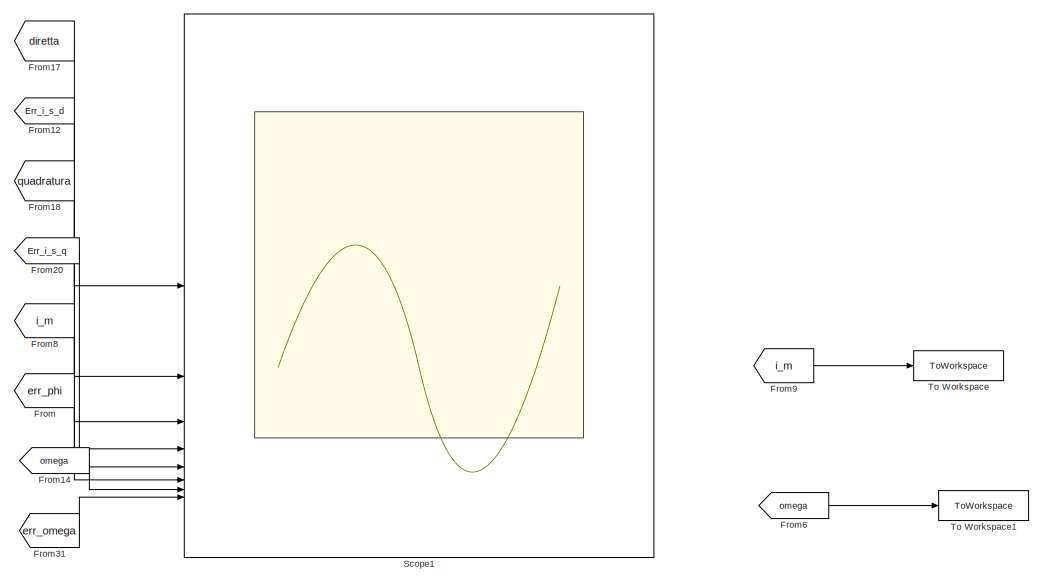
[diagram: root canvas - part 1/5, top right region]
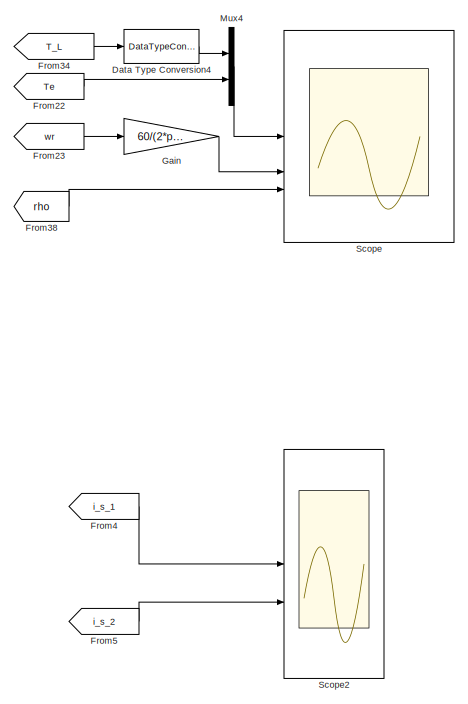
[diagram: root canvas - part 2/5, top center region]
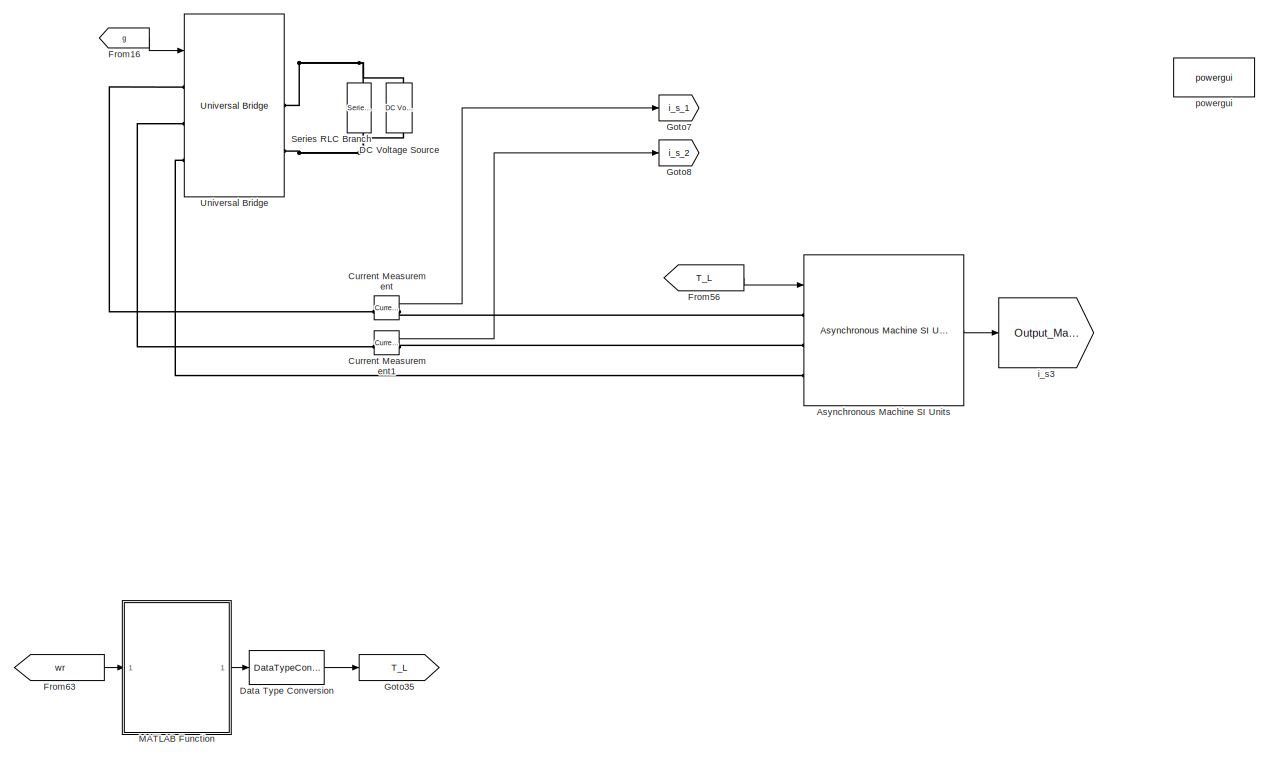
[diagram: root canvas - part 3/5, top left region]
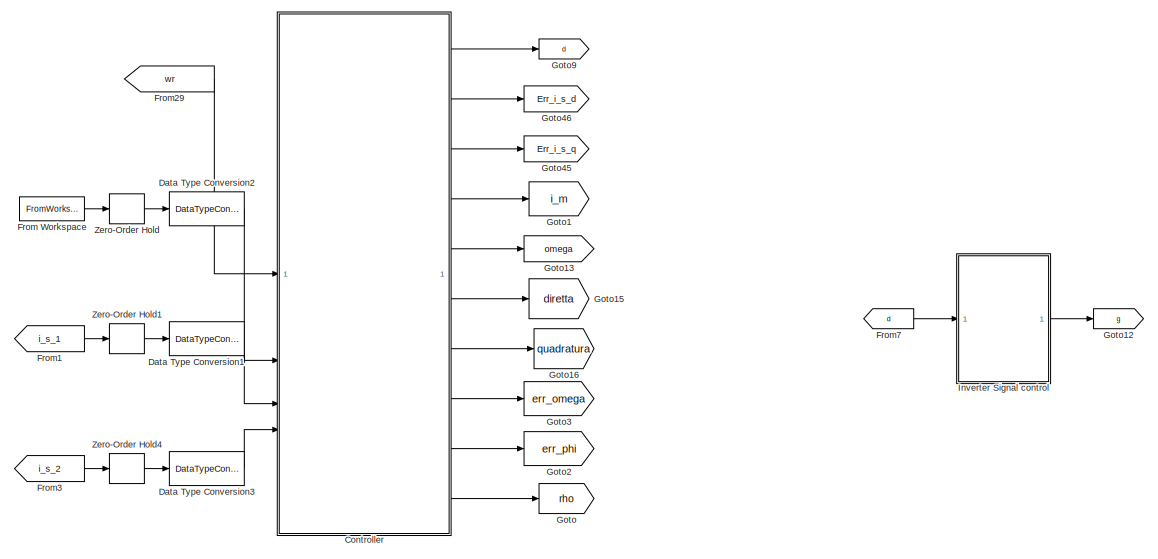
[diagram: root canvas - part 4/5, bottom right region]
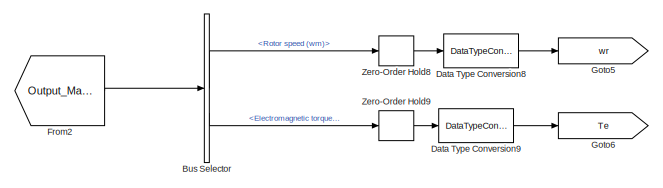
[diagram: root canvas - part 5/5, bottom center region]
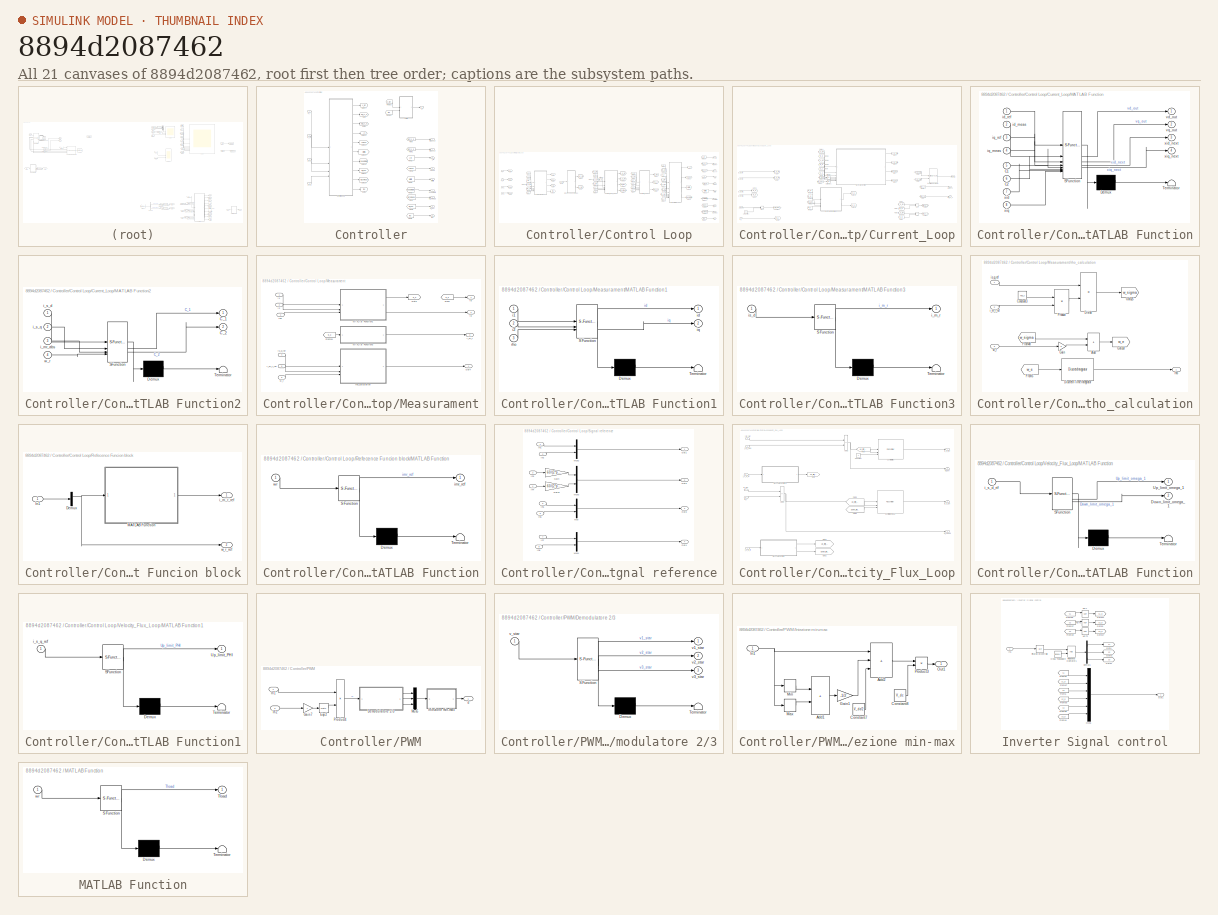
[diagram: thumbnail index - all 21 canvases of the model, root first then tree order]
MODEL slx_8894d2087462
KIND model
CONFIG AbsTol = auto
CONFIG EnableMultiTasking = off
CONFIG FixedStep = auto
CONFIG InitFcn = Motor_data_IM_R;
CONFIG MaxStep = 1e-5
CONFIG MinStep = auto
CONFIG RelTol = 1e-4
CONFIG SampleTimeConstraint = Unconstrained
CONFIG SolverName = ode23tb
CONFIG StartTime = 0.0
CONFIG StopTime = 10
BLOCK [Reference] Asynchronous Machine SI Units  REF=spsAsynchronousMachineSIUnitsLib/Asynchronous Machine
SI Units
  LibrarySourceBlock = sps_lib/Electrical Machines/Asynchronous Machine\nSI Units
  SourceBlock = spsAsynchronousMachineSIUnitsLib/Asynchronous Machine\nSI Units
  SourceType = Asynchronous Machine
BLOCK [BusSelector] Bus Selector
  OutputSignals = Mechanical.Rotor speed (wm),Mechanical.Electromagnetic torque Te (N*m)
BLOCK [SubSystem] Controller
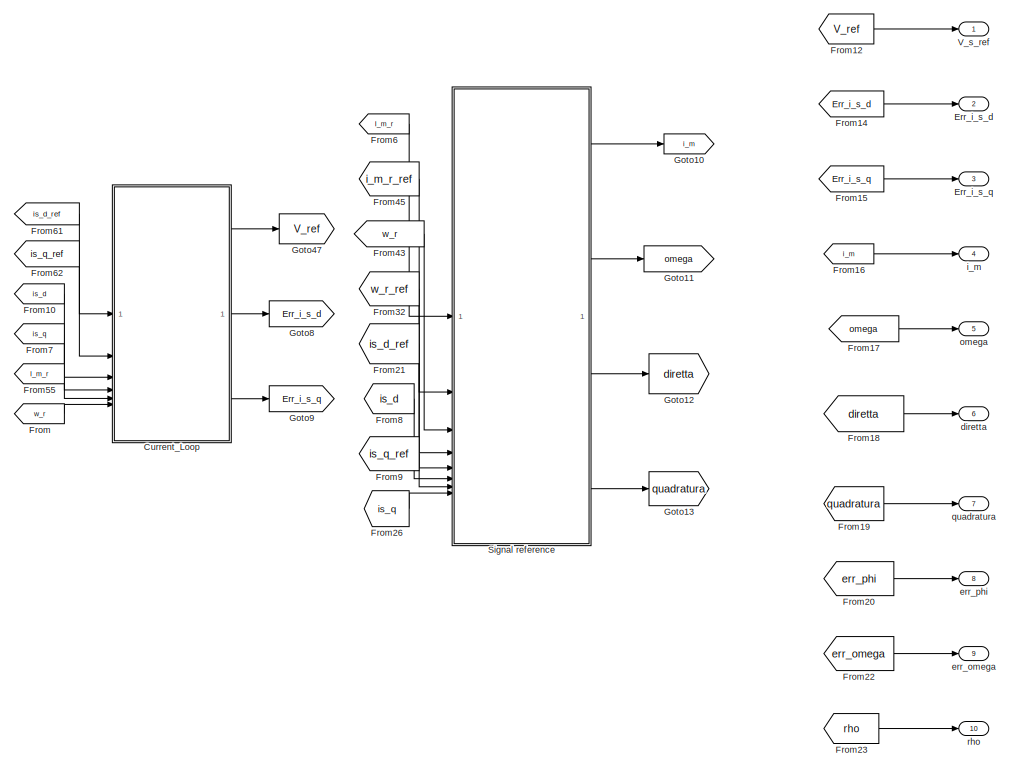
[diagram: Controller/Control Loop - part 1/2, right side, full height]
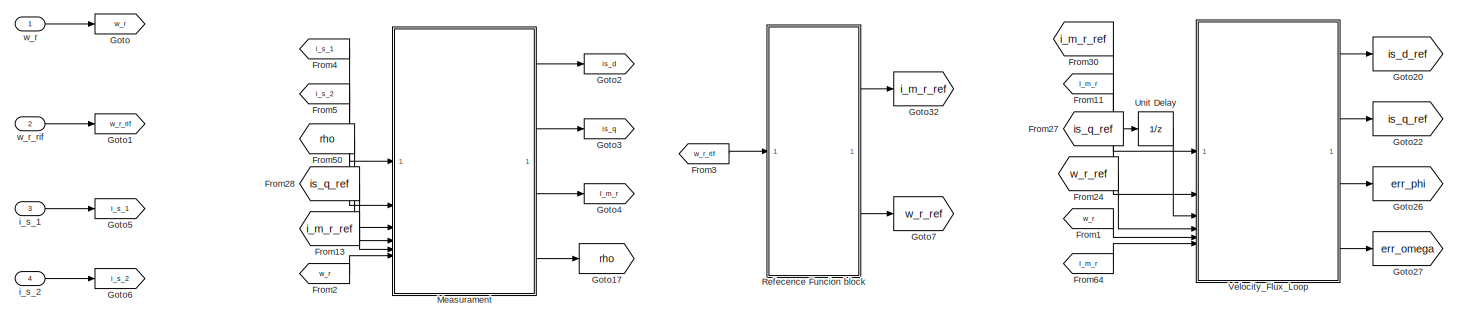
[diagram: Controller/Control Loop - part 2/2, middle left region]
BLOCK [SubSystem] Controller/Control Loop
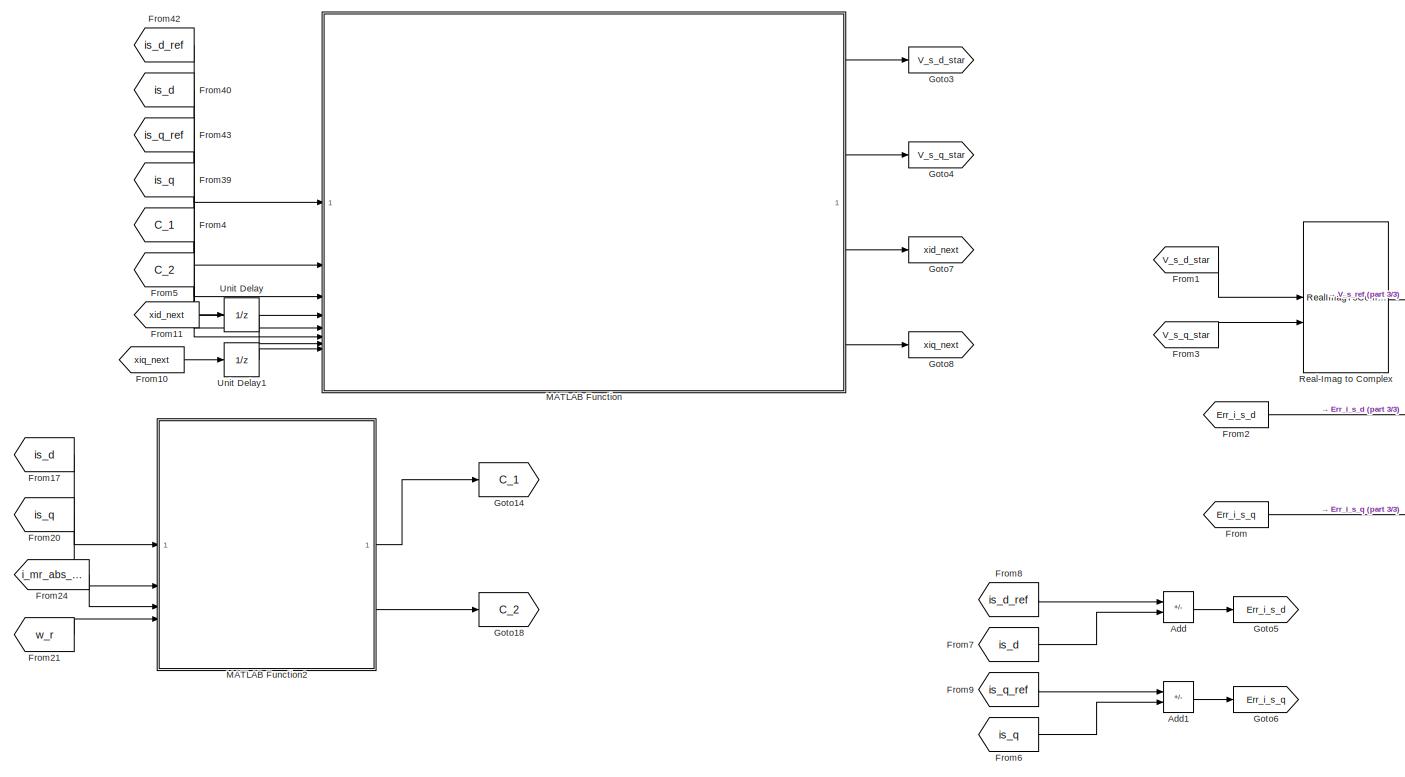
[diagram: Controller/Control Loop/Current_Loop - part 1/3, center side, full height]
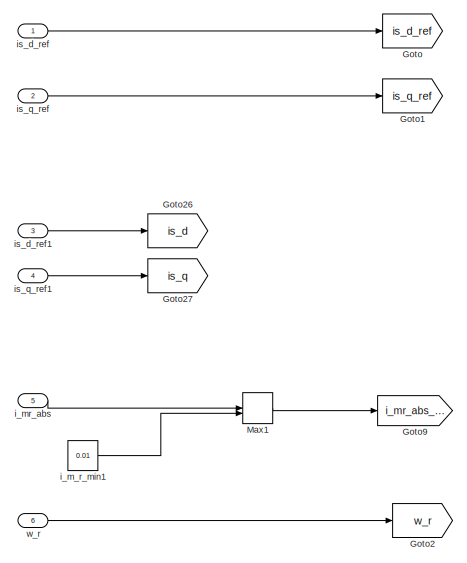
[diagram: Controller/Control Loop/Current_Loop - part 2/3, middle left region]
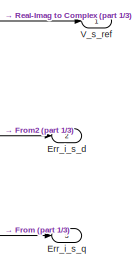
[diagram: Controller/Control Loop/Current_Loop - part 3/3, middle right region]
BLOCK [SubSystem] Controller/Control Loop/Current_Loop
BLOCK [Sum] Controller/Control Loop/Current_Loop/Add
  IconShape = rectangular
  Inputs = +-
BLOCK [Sum] Controller/Control Loop/Current_Loop/Add1
  IconShape = rectangular
  Inputs = +-
BLOCK [Outport] Controller/Control Loop/Current_Loop/Err_i_s_d
  Port = 2
BLOCK [Outport] Controller/Control Loop/Current_Loop/Err_i_s_q
  Port = 3
BLOCK [From] Controller/Control Loop/Current_Loop/From
  GotoTag = Err_i_s_q
BLOCK [From] Controller/Control Loop/Current_Loop/From1
  GotoTag = V_s_d_star
BLOCK [From] Controller/Control Loop/Current_Loop/From10
  GotoTag = xiq_next
BLOCK [From] Controller/Control Loop/Current_Loop/From11
  GotoTag = xid_next
BLOCK [From] Controller/Control Loop/Current_Loop/From17
  GotoTag = is_d
BLOCK [From] Controller/Control Loop/Current_Loop/From2
  GotoTag = Err_i_s_d
BLOCK [From] Controller/Control Loop/Current_Loop/From20
  GotoTag = is_q
BLOCK [From] Controller/Control Loop/Current_Loop/From21
  GotoTag = w_r
BLOCK [From] Controller/Control Loop/Current_Loop/From24
  GotoTag = i_mr_abs_safe
BLOCK [From] Controller/Control Loop/Current_Loop/From3
  GotoTag = V_s_q_star
BLOCK [From] Controller/Control Loop/Current_Loop/From39
  GotoTag = is_q
BLOCK [From] Controller/Control Loop/Current_Loop/From4
  GotoTag = C_1
BLOCK [From] Controller/Control Loop/Current_Loop/From40
  GotoTag = is_d
BLOCK [From] Controller/Control Loop/Current_Loop/From42
  GotoTag = is_d_ref
BLOCK [From] Controller/Control Loop/Current_Loop/From43
  GotoTag = is_q_ref
BLOCK [From] Controller/Control Loop/Current_Loop/From5
  GotoTag = C_2
BLOCK [From] Controller/Control Loop/Current_Loop/From6
  GotoTag = is_q
BLOCK [From] Controller/Control Loop/Current_Loop/From7
  GotoTag = is_d
BLOCK [From] Controller/Control Loop/Current_Loop/From8
  GotoTag = is_d_ref
BLOCK [From] Controller/Control Loop/Current_Loop/From9
  GotoTag = is_q_ref
BLOCK [Goto] Controller/Control Loop/Current_Loop/Goto
  GotoTag = is_d_ref
BLOCK [Goto] Controller/Control Loop/Current_Loop/Goto1
  GotoTag = is_q_ref
BLOCK [Goto] Controller/Control Loop/Current_Loop/Goto14
  GotoTag = C_1
BLOCK [Goto] Controller/Control Loop/Current_Loop/Goto18
  GotoTag = C_2
BLOCK [Goto] Controller/Control Loop/Current_Loop/Goto2
  GotoTag = w_r
BLOCK [Goto] Controller/Control Loop/Current_Loop/Goto26
  GotoTag = is_d
BLOCK [Goto] Controller/Control Loop/Current_Loop/Goto27
  GotoTag = is_q
BLOCK [Goto] Controller/Control Loop/Current_Loop/Goto3
  GotoTag = V_s_d_star
BLOCK [Goto] Controller/Control Loop/Current_Loop/Goto4
  GotoTag = V_s_q_star
BLOCK [Goto] Controller/Control Loop/Current_Loop/Goto5
  GotoTag = Err_i_s_d
BLOCK [Goto] Controller/Control Loop/Current_Loop/Goto6
  GotoTag = Err_i_s_q
BLOCK [Goto] Controller/Control Loop/Current_Loop/Goto7
  GotoTag = xid_next
BLOCK [Goto] Controller/Control Loop/Current_Loop/Goto8
  GotoTag = xiq_next
BLOCK [Goto] Controller/Control Loop/Current_Loop/Goto9
  GotoTag = i_mr_abs_safe
BLOCK [SubSystem] Controller/Control Loop/Current_Loop/MATLAB Function
  ErrorFcn = Stateflow.Translate.translate
  PermitHierarchicalResolution = ExplicitOnly
  SFBlockType = MATLAB Function
  TreatAsAtomicUnit = on
BLOCK [Demux] Controller/Control Loop/Current_Loop/MATLAB Function/ Demux 
  Outputs = 1
BLOCK [S-Function] Controller/Control Loop/Current_Loop/MATLAB Function/ SFunction 
  EnableBusSupport = on
  FunctionName = sf_sfun
  Parameters = Ki_d,Ki_q,Kp_d,Kp_q,Ts,lim
  PortCounts = [8 5]
  SFcnIsStateOwnerBlock = off
  SFunctionDeploymentMode = off
  Tag = Stateflow S-Function 1
BLOCK [Terminator] Controller/Control Loop/Current_Loop/MATLAB Function/ Terminator 
BLOCK [Inport] Controller/Control Loop/Current_Loop/MATLAB Function/C1
  Port = 5
BLOCK [Inport] Controller/Control Loop/Current_Loop/MATLAB Function/C2
  Port = 6
BLOCK [Inport] Controller/Control Loop/Current_Loop/MATLAB Function/id_meas
  Port = 2
BLOCK [Inport] Controller/Control Loop/Current_Loop/MATLAB Function/id_ref
BLOCK [Inport] Controller/Control Loop/Current_Loop/MATLAB Function/iq_meas
  Port = 4
BLOCK [Inport] Controller/Control Loop/Current_Loop/MATLAB Function/iq_ref
  Port = 3
BLOCK [Outport] Controller/Control Loop/Current_Loop/MATLAB Function/vd_out
BLOCK [Outport] Controller/Control Loop/Current_Loop/MATLAB Function/vq_out
  Port = 2
BLOCK [Inport] Controller/Control Loop/Current_Loop/MATLAB Function/xid
  Port = 7
BLOCK [Outport] Controller/Control Loop/Current_Loop/MATLAB Function/xid_next
  Port = 3
BLOCK [Inport] Controller/Control Loop/Current_Loop/MATLAB Function/xiq
  Port = 8
BLOCK [Outport] Controller/Control Loop/Current_Loop/MATLAB Function/xiq_next
  Port = 4
BLOCK [SubSystem] Controller/Control Loop/Current_Loop/MATLAB Function2
  ErrorFcn = Stateflow.Translate.translate
  PermitHierarchicalResolution = ExplicitOnly
  SFBlockType = MATLAB Function
  TreatAsAtomicUnit = on
BLOCK [Demux] Controller/Control Loop/Current_Loop/MATLAB Function2/ Demux 
  Outputs = 1
BLOCK [S-Function] Controller/Control Loop/Current_Loop/MATLAB Function2/ SFunction 
  EnableBusSupport = on
  FunctionName = sf_sfun
  Parameters = K_r,K_s,Tau_r,p
  PortCounts = [4 3]
  SFcnIsStateOwnerBlock = off
  SFunctionDeploymentMode = off
  Tag = Stateflow S-Function 5
BLOCK [Terminator] Controller/Control Loop/Current_Loop/MATLAB Function2/ Terminator 
BLOCK [Outport] Controller/Control Loop/Current_Loop/MATLAB Function2/C_1
BLOCK [Outport] Controller/Control Loop/Current_Loop/MATLAB Function2/C_2
  Port = 2
BLOCK [Inport] Controller/Control Loop/Current_Loop/MATLAB Function2/i_mr_abs
  Port = 3
BLOCK [Inport] Controller/Control Loop/Current_Loop/MATLAB Function2/i_s_d
BLOCK [Inport] Controller/Control Loop/Current_Loop/MATLAB Function2/i_s_q
  Port = 2
BLOCK [Inport] Controller/Control Loop/Current_Loop/MATLAB Function2/w_r
  Port = 4
BLOCK [MinMax] Controller/Control Loop/Current_Loop/Max1
  Function = max
  Inputs = 2
BLOCK [RealImagToComplex] Controller/Control Loop/Current_Loop/Real-Imag to Complex
BLOCK [UnitDelay] Controller/Control Loop/Current_Loop/Unit Delay
  HasFrameUpgradeWarning = on
  SampleTime = -1
BLOCK [UnitDelay] Controller/Control Loop/Current_Loop/Unit Delay1
  HasFrameUpgradeWarning = on
  SampleTime = -1
BLOCK [Outport] Controller/Control Loop/Current_Loop/V_s_ref
BLOCK [Constant] Controller/Control Loop/Current_Loop/i_m_r_min1
  OutDataTypeStr = single
  Value = 0.01
BLOCK [Inport] Controller/Control Loop/Current_Loop/i_mr_abs
  Port = 5
BLOCK [Inport] Controller/Control Loop/Current_Loop/is_d_ref
BLOCK [Inport] Controller/Control Loop/Current_Loop/is_d_ref1
  Port = 3
BLOCK [Inport] Controller/Control Loop/Current_Loop/is_q_ref
  Port = 2
BLOCK [Inport] Controller/Control Loop/Current_Loop/is_q_ref1
  Port = 4
BLOCK [Inport] Controller/Control Loop/Current_Loop/w_r
  Port = 6
BLOCK [Outport] Controller/Control Loop/Err_i_s_d
  Port = 2
BLOCK [Outport] Controller/Control Loop/Err_i_s_q
  Port = 3
BLOCK [From] Controller/Control Loop/From
  GotoTag = w_r
BLOCK [From] Controller/Control Loop/From1
  GotoTag = w_r
BLOCK [From] Controller/Control Loop/From10
  GotoTag = is_d
BLOCK [From] Controller/Control Loop/From11
  GotoTag = I_m_r
BLOCK [From] Controller/Control Loop/From12
  GotoTag = V_ref
BLOCK [From] Controller/Control Loop/From13
  GotoTag = i_m_r_ref
BLOCK [From] Controller/Control Loop/From14
  GotoTag = Err_i_s_d
BLOCK [From] Controller/Control Loop/From15
  GotoTag = Err_i_s_q
BLOCK [From] Controller/Control Loop/From16
  GotoTag = i_m
BLOCK [From] Controller/Control Loop/From17
  GotoTag = omega
BLOCK [From] Controller/Control Loop/From18
  GotoTag = diretta
BLOCK [From] Controller/Control Loop/From19
  GotoTag = quadratura
BLOCK [From] Controller/Control Loop/From2
  GotoTag = w_r
BLOCK [From] Controller/Control Loop/From20
  GotoTag = err_phi
BLOCK [From] Controller/Control Loop/From21
  GotoTag = is_d_ref
BLOCK [From] Controller/Control Loop/From22
  GotoTag = err_omega
BLOCK [From] Controller/Control Loop/From23
  GotoTag = rho
BLOCK [From] Controller/Control Loop/From24
  GotoTag = w_r_ref
BLOCK [From] Controller/Control Loop/From26
  GotoTag = is_q
BLOCK [From] Controller/Control Loop/From27
  GotoTag = is_q_ref
BLOCK [From] Controller/Control Loop/From28
  GotoTag = is_q_ref
BLOCK [From] Controller/Control Loop/From3
  GotoTag = w_r_rif
BLOCK [From] Controller/Control Loop/From30
  GotoTag = i_m_r_ref
BLOCK [From] Controller/Control Loop/From32
  GotoTag = w_r_ref
BLOCK [From] Controller/Control Loop/From4
  GotoTag = i_s_1
BLOCK [From] Controller/Control Loop/From43
  GotoTag = w_r
BLOCK [From] Controller/Control Loop/From45
  GotoTag = i_m_r_ref
BLOCK [From] Controller/Control Loop/From5
  GotoTag = i_s_2
BLOCK [From] Controller/Control Loop/From50
  GotoTag = rho
BLOCK [From] Controller/Control Loop/From55
  GotoTag = I_m_r
BLOCK [From] Controller/Control Loop/From6
  GotoTag = I_m_r
BLOCK [From] Controller/Control Loop/From61
  GotoTag = is_d_ref
BLOCK [From] Controller/Control Loop/From62
  GotoTag = is_q_ref
BLOCK [From] Controller/Control Loop/From64
  GotoTag = I_m_r
BLOCK [From] Controller/Control Loop/From7
  GotoTag = is_q
BLOCK [From] Controller/Control Loop/From8
  GotoTag = is_d
BLOCK [From] Controller/Control Loop/From9
  GotoTag = is_q_ref
BLOCK [Goto] Controller/Control Loop/Goto
  GotoTag = w_r
BLOCK [Goto] Controller/Control Loop/Goto1
  GotoTag = w_r_rif
BLOCK [Goto] Controller/Control Loop/Goto10
  GotoTag = i_m
BLOCK [Goto] Controller/Control Loop/Goto11
  GotoTag = omega
BLOCK [Goto] Controller/Control Loop/Goto12
  GotoTag = diretta
BLOCK [Goto] Controller/Control Loop/Goto13
  GotoTag = quadratura
BLOCK [Goto] Controller/Control Loop/Goto17
  GotoTag = rho
BLOCK [Goto] Controller/Control Loop/Goto2
  GotoTag = is_d
BLOCK [Goto] Controller/Control Loop/Goto20
  GotoTag = is_d_ref
BLOCK [Goto] Controller/Control Loop/Goto22
  GotoTag = is_q_ref
BLOCK [Goto] Controller/Control Loop/Goto26
  GotoTag = err_phi
BLOCK [Goto] Controller/Control Loop/Goto27
  GotoTag = err_omega
BLOCK [Goto] Controller/Control Loop/Goto3
  GotoTag = is_q
BLOCK [Goto] Controller/Control Loop/Goto32
  GotoTag = i_m_r_ref
BLOCK [Goto] Controller/Control Loop/Goto4
  GotoTag = I_m_r
BLOCK [Goto] Controller/Control Loop/Goto47
  GotoTag = V_ref
BLOCK [Goto] Controller/Control Loop/Goto5
  GotoTag = i_s_1
BLOCK [Goto] Controller/Control Loop/Goto6
  GotoTag = i_s_2
BLOCK [Goto] Controller/Control Loop/Goto7
  GotoTag = w_r_ref
BLOCK [Goto] Controller/Control Loop/Goto8
  GotoTag = Err_i_s_d
BLOCK [Goto] Controller/Control Loop/Goto9
  GotoTag = Err_i_s_q
BLOCK [SubSystem] Controller/Control Loop/Measurament
BLOCK [From] Controller/Control Loop/Measurament/From
  GotoTag = is_d
BLOCK [From] Controller/Control Loop/Measurament/From54
  GotoTag = is_d
BLOCK [Goto] Controller/Control Loop/Measurament/Goto
  GotoTag = is_d
BLOCK [SubSystem] Controller/Control Loop/Measurament/MATLAB Function1
  ErrorFcn = Stateflow.Translate.translate
  PermitHierarchicalResolution = ExplicitOnly
  SFBlockType = MATLAB Function
  TreatAsAtomicUnit = on
BLOCK [Demux] Controller/Control Loop/Measurament/MATLAB Function1/ Demux 
  Outputs = 1
BLOCK [S-Function] Controller/Control Loop/Measurament/MATLAB Function1/ SFunction 
  EnableBusSupport = on
  FunctionName = sf_sfun
  PortCounts = [3 3]
  SFcnIsStateOwnerBlock = off
  SFunctionDeploymentMode = off
  Tag = Stateflow S-Function 2
BLOCK [Terminator] Controller/Control Loop/Measurament/MATLAB Function1/ Terminator 
BLOCK [Inport] Controller/Control Loop/Measurament/MATLAB Function1/i1
BLOCK [Inport] Controller/Control Loop/Measurament/MATLAB Function1/i2
  Port = 2
BLOCK [Outport] Controller/Control Loop/Measurament/MATLAB Function1/id
BLOCK [Outport] Controller/Control Loop/Measurament/MATLAB Function1/iq
  Port = 2
BLOCK [Inport] Controller/Control Loop/Measurament/MATLAB Function1/rho
  Port = 3
BLOCK [SubSystem] Controller/Control Loop/Measurament/MATLAB Function3
  ErrorFcn = Stateflow.Translate.translate
  PermitHierarchicalResolution = ExplicitOnly
  SFBlockType = MATLAB Function
  TreatAsAtomicUnit = on
BLOCK [Demux] Controller/Control Loop/Measurament/MATLAB Function3/ Demux 
  Outputs = 1
BLOCK [S-Function] Controller/Control Loop/Measurament/MATLAB Function3/ SFunction 
  EnableBusSupport = on
  FunctionName = sf_sfun
  Parameters = Tau_r,Ts
  PortCounts = [1 2]
  SFcnIsStateOwnerBlock = off
  SFunctionDeploymentMode = off
  Tag = Stateflow S-Function 3
BLOCK [Terminator] Controller/Control Loop/Measurament/MATLAB Function3/ Terminator 
BLOCK [Outport] Controller/Control Loop/Measurament/MATLAB Function3/i_m_r
BLOCK [Inport] Controller/Control Loop/Measurament/MATLAB Function3/is_d
BLOCK [Outport] Controller/Control Loop/Measurament/Out4
  Port = 4
BLOCK [Inport] Controller/Control Loop/Measurament/i1
BLOCK [Inport] Controller/Control Loop/Measurament/i2
  Port = 2
BLOCK [Outport] Controller/Control Loop/Measurament/i_m_r
  Port = 3
BLOCK [Inport] Controller/Control Loop/Measurament/i_m_r_ref
  Port = 5
BLOCK [Outport] Controller/Control Loop/Measurament/id
BLOCK [Outport] Controller/Control Loop/Measurament/iq
  Port = 2
BLOCK [Inport] Controller/Control Loop/Measurament/is_q_ref
  Port = 4
BLOCK [Inport] Controller/Control Loop/Measurament/rho
  Port = 3
BLOCK [SubSystem] Controller/Control Loop/Measurament/rho_calculation
BLOCK [Sum] Controller/Control Loop/Measurament/rho_calculation/Add
  IconShape = rectangular
BLOCK [Constant] Controller/Control Loop/Measurament/rho_calculation/Constant3
  Value = Tau_r
BLOCK [DiscreteIntegrator] Controller/Control Loop/Measurament/rho_calculation/Discrete-Time Integrator
  ICPrevOutput = DiscIntNeverNeededParam
  ICPrevScaledInput = DiscIntNeverNeededParam
  InitialConditionSetting = Auto
  OutDataTypeStr = single
  SampleTime = -1
BLOCK [Product] Controller/Control Loop/Measurament/rho_calculation/Divide
  Inputs = */
BLOCK [From] Controller/Control Loop/Measurament/rho_calculation/From48
  GotoTag = w_sigma
BLOCK [From] Controller/Control Loop/Measurament/rho_calculation/From5
  GotoTag = w_e
BLOCK [Gain] Controller/Control Loop/Measurament/rho_calculation/Gain
  Gain = p
BLOCK [Goto] Controller/Control Loop/Measurament/rho_calculation/Goto14
  GotoTag = w_e
BLOCK [Goto] Controller/Control Loop/Measurament/rho_calculation/Goto25
  GotoTag = w_sigma
BLOCK [Product] Controller/Control Loop/Measurament/rho_calculation/Product
BLOCK [Inport] Controller/Control Loop/Measurament/rho_calculation/i_m_r_ref
  Port = 2
BLOCK [Inport] Controller/Control Loop/Measurament/rho_calculation/is_q_ref
BLOCK [Outport] Controller/Control Loop/Measurament/rho_calculation/rho
BLOCK [Inport] Controller/Control Loop/Measurament/rho_calculation/w_r
  Port = 3
BLOCK [Inport] Controller/Control Loop/Measurament/w_r
  Port = 6
BLOCK [SubSystem] Controller/Control Loop/Refecence Funcion block
BLOCK [Demux] Controller/Control Loop/Refecence Funcion block/Demux
  Outputs = 2
BLOCK [Inport] Controller/Control Loop/Refecence Funcion block/In1
BLOCK [SubSystem] Controller/Control Loop/Refecence Funcion block/MATLAB Function
  ErrorFcn = Stateflow.Translate.translate
  PermitHierarchicalResolution = ExplicitOnly
  SFBlockType = MATLAB Function
  TreatAsAtomicUnit = on
BLOCK [Demux] Controller/Control Loop/Refecence Funcion block/MATLAB Function/ Demux 
  Outputs = 1
BLOCK [S-Function] Controller/Control Loop/Refecence Funcion block/MATLAB Function/ SFunction 
  EnableBusSupport = on
  FunctionName = sf_sfun
  Parameters = imr_min,wr_n
  PortCounts = [1 2]
  SFcnIsStateOwnerBlock = off
  SFunctionDeploymentMode = off
  Tag = Stateflow S-Function 6
BLOCK [Terminator] Controller/Control Loop/Refecence Funcion block/MATLAB Function/ Terminator 
BLOCK [Outport] Controller/Control Loop/Refecence Funcion block/MATLAB Function/imr_ref
BLOCK [Inport] Controller/Control Loop/Refecence Funcion block/MATLAB Function/wr
BLOCK [Outport] Controller/Control Loop/Refecence Funcion block/i_m_r_ref
BLOCK [Outport] Controller/Control Loop/Refecence Funcion block/w_r_ref
  Port = 2
BLOCK [SubSystem] Controller/Control Loop/Signal reference
BLOCK [Gain] Controller/Control Loop/Signal reference/Gain
  Gain = 60/(2*pi)
BLOCK [Gain] Controller/Control Loop/Signal reference/Gain1
  Gain = 60/(2*pi)
BLOCK [Inport] Controller/Control Loop/Signal reference/In1
BLOCK [Inport] Controller/Control Loop/Signal reference/In2
  Port = 2
BLOCK [Inport] Controller/Control Loop/Signal reference/In3
  Port = 3
BLOCK [Inport] Controller/Control Loop/Signal reference/In4
  Port = 4
BLOCK [Inport] Controller/Control Loop/Signal reference/In5
  Port = 5
BLOCK [Inport] Controller/Control Loop/Signal reference/In6
  Port = 6
BLOCK [Inport] Controller/Control Loop/Signal reference/In7
  Port = 7
BLOCK [Inport] Controller/Control Loop/Signal reference/In8
  Port = 8
BLOCK [Mux] Controller/Control Loop/Signal reference/Mux
  DisplayOption = bar
  Inputs = 2
BLOCK [Mux] Controller/Control Loop/Signal reference/Mux1
  DisplayOption = bar
  Inputs = 2
BLOCK [Mux] Controller/Control Loop/Signal reference/Mux2
  DisplayOption = bar
  Inputs = 2
BLOCK [Mux] Controller/Control Loop/Signal reference/Mux3
  DisplayOption = bar
  Inputs = 2
BLOCK [Outport] Controller/Control Loop/Signal reference/Out1
BLOCK [Outport] Controller/Control Loop/Signal reference/Out2
  Port = 2
BLOCK [Outport] Controller/Control Loop/Signal reference/Out3
  Port = 3
BLOCK [Outport] Controller/Control Loop/Signal reference/Out4
  Port = 4
BLOCK [UnitDelay] Controller/Control Loop/Unit Delay
  HasFrameUpgradeWarning = on
  SampleTime = -1
BLOCK [Outport] Controller/Control Loop/V_s_ref
BLOCK [SubSystem] Controller/Control Loop/Velocity_Flux_Loop
BLOCK [Sum] Controller/Control Loop/Velocity_Flux_Loop/Add1
  IconShape = rectangular
  Inputs = +-
BLOCK [Sum] Controller/Control Loop/Velocity_Flux_Loop/Add2
  IconShape = rectangular
  Inputs = +-
BLOCK [Constant] Controller/Control Loop/Velocity_Flux_Loop/Constant
  OutDataTypeStr = single
  Value = 0
BLOCK [Reference] Controller/Control Loop/Velocity_Flux_Loop/Controller flux  REF=slpidlib/PID Controller
  SourceBlock = slpidlib/PID Controller
  SourceType = PID 1dof
BLOCK [Reference] Controller/Control Loop/Velocity_Flux_Loop/Controller omega  REF=slpidlib/PID Controller
  SourceBlock = slpidlib/PID Controller
  SourceType = PID 1dof
BLOCK [From] Controller/Control Loop/Velocity_Flux_Loop/From
  GotoTag = Up_limit_PHI
BLOCK [From] Controller/Control Loop/Velocity_Flux_Loop/From2
  GotoTag = Down_limit_omega_1
BLOCK [From] Controller/Control Loop/Velocity_Flux_Loop/From3
  GotoTag = Up_limit_omega_1
BLOCK [Goto] Controller/Control Loop/Velocity_Flux_Loop/Goto
  GotoTag = Up_limit_PHI
BLOCK [Goto] Controller/Control Loop/Velocity_Flux_Loop/Goto1
  GotoTag = Up_limit_omega_1
BLOCK [Goto] Controller/Control Loop/Velocity_Flux_Loop/Goto2
  GotoTag = Down_limit_omega_1
BLOCK [SubSystem] Controller/Control Loop/Velocity_Flux_Loop/MATLAB Function
  ErrorFcn = Stateflow.Translate.translate
  PermitHierarchicalResolution = ExplicitOnly
  SFBlockType = MATLAB Function
  TreatAsAtomicUnit = on
BLOCK [Demux] Controller/Control Loop/Velocity_Flux_Loop/MATLAB Function/ Demux 
  Outputs = 1
BLOCK [S-Function] Controller/Control Loop/Velocity_Flux_Loop/MATLAB Function/ SFunction 
  EnableBusSupport = on
  FunctionName = sf_sfun
  Parameters = Is_adc
  PortCounts = [1 3]
  SFcnIsStateOwnerBlock = off
  SFunctionDeploymentMode = off
  Tag = Stateflow S-Function 4
BLOCK [Terminator] Controller/Control Loop/Velocity_Flux_Loop/MATLAB Function/ Terminator 
BLOCK [Outport] Controller/Control Loop/Velocity_Flux_Loop/MATLAB Function/Down_limit_omega_1
  Port = 2
BLOCK [Outport] Controller/Control Loop/Velocity_Flux_Loop/MATLAB Function/Up_limit_omega_1
BLOCK [Inport] Controller/Control Loop/Velocity_Flux_Loop/MATLAB Function/i_s_d_rif
BLOCK [SubSystem] Controller/Control Loop/Velocity_Flux_Loop/MATLAB Function1
  ErrorFcn = Stateflow.Translate.translate
  PermitHierarchicalResolution = ExplicitOnly
  SFBlockType = MATLAB Function
  TreatAsAtomicUnit = on
BLOCK [Demux] Controller/Control Loop/Velocity_Flux_Loop/MATLAB Function1/ Demux 
  Outputs = 1
BLOCK [S-Function] Controller/Control Loop/Velocity_Flux_Loop/MATLAB Function1/ SFunction 
  EnableBusSupport = on
  FunctionName = sf_sfun
  Parameters = Is_adc
  PortCounts = [1 2]
  SFcnIsStateOwnerBlock = off
  SFunctionDeploymentMode = off
  Tag = Stateflow S-Function 7
BLOCK [Terminator] Controller/Control Loop/Velocity_Flux_Loop/MATLAB Function1/ Terminator 
BLOCK [Outport] Controller/Control Loop/Velocity_Flux_Loop/MATLAB Function1/Up_limit_PHI
BLOCK [Inport] Controller/Control Loop/Velocity_Flux_Loop/MATLAB Function1/i_s_q_ref
BLOCK [Outport] Controller/Control Loop/Velocity_Flux_Loop/err_omega
  Port = 4
BLOCK [Outport] Controller/Control Loop/Velocity_Flux_Loop/err_phi
  Port = 3
BLOCK [Inport] Controller/Control Loop/Velocity_Flux_Loop/i_m_r_abs
  Port = 2
BLOCK [Inport] Controller/Control Loop/Velocity_Flux_Loop/i_m_r_ref
BLOCK [Inport] Controller/Control Loop/Velocity_Flux_Loop/i_s_d_rif
  Port = 6
BLOCK [Inport] Controller/Control Loop/Velocity_Flux_Loop/i_s_q_ref
  Port = 3
BLOCK [Outport] Controller/Control Loop/Velocity_Flux_Loop/is_d_ref
BLOCK [Outport] Controller/Control Loop/Velocity_Flux_Loop/is_q_ref
  Port = 2
BLOCK [Inport] Controller/Control Loop/Velocity_Flux_Loop/w_r
  Port = 5
BLOCK [Inport] Controller/Control Loop/Velocity_Flux_Loop/w_r_ref
  Port = 4
BLOCK [Outport] Controller/Control Loop/diretta
  Port = 6
BLOCK [Outport] Controller/Control Loop/err_omega
  Port = 9
BLOCK [Outport] Controller/Control Loop/err_phi
  Port = 8
BLOCK [Outport] Controller/Control Loop/i_m
  Port = 4
BLOCK [Inport] Controller/Control Loop/i_s_1
  Port = 3
BLOCK [Inport] Controller/Control Loop/i_s_2
  Port = 4
BLOCK [Outport] Controller/Control Loop/omega
  Port = 5
BLOCK [Outport] Controller/Control Loop/quadratura
  Port = 7
BLOCK [Outport] Controller/Control Loop/rho
  Port = 10
BLOCK [Inport] Controller/Control Loop/w_r
BLOCK [Inport] Controller/Control Loop/w_r_rif
  Port = 2
BLOCK [Outport] Controller/Err_i_s_d
  Port = 2
BLOCK [Outport] Controller/Err_i_s_q
  Port = 3
BLOCK [From] Controller/From
  GotoTag = Err_i_s_d
BLOCK [From] Controller/From1
  GotoTag = Err_i_s_q
BLOCK [From] Controller/From2
  GotoTag = i_m
BLOCK [From] Controller/From25
  GotoTag = V_ref
BLOCK [From] Controller/From3
  GotoTag = omega
BLOCK [From] Controller/From39
  GotoTag = rho
BLOCK [From] Controller/From4
  GotoTag = diretta
BLOCK [From] Controller/From5
  GotoTag = rho
BLOCK [From] Controller/From6
  GotoTag = quadratura
BLOCK [From] Controller/From7
  GotoTag = err_omega
BLOCK [From] Controller/From8
  GotoTag = err_phi
BLOCK [Goto] Controller/Goto
  GotoTag = Err_i_s_d
BLOCK [Goto] Controller/Goto1
  GotoTag = Err_i_s_q
BLOCK [Goto] Controller/Goto15
  GotoTag = err_omega
BLOCK [Goto] Controller/Goto16
  GotoTag = err_phi
BLOCK [Goto] Controller/Goto18
  GotoTag = quadratura
BLOCK [Goto] Controller/Goto19
  GotoTag = diretta
BLOCK [Goto] Controller/Goto2
  GotoTag = rho
BLOCK [Goto] Controller/Goto21
  GotoTag = omega
BLOCK [Goto] Controller/Goto23
  GotoTag = i_m
BLOCK [Goto] Controller/Goto47
  GotoTag = V_ref
BLOCK [SubSystem] Controller/PWM
BLOCK [SubSystem] Controller/PWM/Demodulatore 2//3
  ErrorFcn = Stateflow.Translate.translate
  PermitHierarchicalResolution = ExplicitOnly
  SFBlockType = MATLAB Function
  TreatAsAtomicUnit = on
BLOCK [Demux] Controller/PWM/Demodulatore 2//3/ Demux 
  Outputs = 1
BLOCK [S-Function] Controller/PWM/Demodulatore 2//3/ SFunction 
  EnableBusSupport = on
  FunctionName = sf_sfun
  PortCounts = [1 4]
  SFcnIsStateOwnerBlock = off
  SFunctionDeploymentMode = off
  Tag = Stateflow S-Function 8
BLOCK [Terminator] Controller/PWM/Demodulatore 2//3/ Terminator 
BLOCK [Outport] Controller/PWM/Demodulatore 2//3/v1_star
BLOCK [Outport] Controller/PWM/Demodulatore 2//3/v2_star
  Port = 2
BLOCK [Outport] Controller/PWM/Demodulatore 2//3/v3_star
  Port = 3
BLOCK [Inport] Controller/PWM/Demodulatore 2//3/v_star
BLOCK [Math] Controller/PWM/Exp2
  SignedPower = on
BLOCK [Gain] Controller/PWM/Gain7
  Gain = j
BLOCK [Inport] Controller/PWM/In1
BLOCK [Inport] Controller/PWM/In2
  Port = 2
BLOCK [SubSystem] Controller/PWM/Iniezione min-max
BLOCK [Sum] Controller/PWM/Iniezione min-max/Add1
  IconShape = rectangular
BLOCK [Sum] Controller/PWM/Iniezione min-max/Add2
  IconShape = rectangular
  Inputs = +++
BLOCK [Constant] Controller/PWM/Iniezione min-max/Constant7
  Value = V_dc/2
BLOCK [Constant] Controller/PWM/Iniezione min-max/Constant8
  Value = V_dc
BLOCK [Gain] Controller/PWM/Iniezione min-max/Gain1
  Gain = -1/2
BLOCK [Inport] Controller/PWM/Iniezione min-max/In1
BLOCK [MinMax] Controller/PWM/Iniezione min-max/Max
  Function = max
BLOCK [MinMax] Controller/PWM/Iniezione min-max/Min
BLOCK [Outport] Controller/PWM/Iniezione min-max/Out1
BLOCK [Product] Controller/PWM/Iniezione min-max/Product3
  Inputs = */
BLOCK [Mux] Controller/PWM/Mux5
  DisplayOption = bar
  Inputs = 3
BLOCK [Product] Controller/PWM/Product4
BLOCK [Outport] Controller/PWM/d
BLOCK [Outport] Controller/d
BLOCK [Outport] Controller/diretta
  Port = 6
BLOCK [Outport] Controller/err_omega
  Port = 8
BLOCK [Outport] Controller/err_phi
  Port = 9
BLOCK [Outport] Controller/i_m
  Port = 4
BLOCK [Inport] Controller/i_s_1
  Port = 3
BLOCK [Inport] Controller/i_s_2
  Port = 4
BLOCK [Outport] Controller/omega
  Port = 5
BLOCK [Outport] Controller/quadratura
  Port = 7
BLOCK [Outport] Controller/rho
  Port = 10
BLOCK [Inport] Controller/w_r
BLOCK [Inport] Controller/w_r_rif
  Port = 2
BLOCK [Reference] Current Measurement  REF=spsCurrentMeasurementLib/Current Measurement
  LibrarySourceBlock = sps_lib/Sensors and Measurements/Current Measurement
  SourceBlock = spsCurrentMeasurementLib/Current Measurement
  SourceType = Current Measurement
  UserDataPersistent = on
BLOCK [Reference] Current Measurement1  REF=spsCurrentMeasurementLib/Current Measurement
  LibrarySourceBlock = sps_lib/Sensors and Measurements/Current Measurement
  SourceBlock = spsCurrentMeasurementLib/Current Measurement
  SourceType = Current Measurement
  UserDataPersistent = on
BLOCK [Reference] DC Voltage Source  REF=spsDCVoltageSourceLib/DC Voltage Source
  LibrarySourceBlock = sps_lib/Sources/DC Voltage Source
  SourceBlock = spsDCVoltageSourceLib/DC Voltage Source
  SourceType = DC Voltage Source
BLOCK [DataTypeConversion] Data Type Conversion
  OutDataTypeStr = double
  RndMeth = Floor
  SaturateOnIntegerOverflow = off
BLOCK [DataTypeConversion] Data Type Conversion1
  OutDataTypeStr = single
  RndMeth = Floor
  SaturateOnIntegerOverflow = off
BLOCK [DataTypeConversion] Data Type Conversion2
  OutDataTypeStr = single
  RndMeth = Floor
  SaturateOnIntegerOverflow = off
BLOCK [DataTypeConversion] Data Type Conversion3
  OutDataTypeStr = single
  RndMeth = Floor
  SaturateOnIntegerOverflow = off
BLOCK [DataTypeConversion] Data Type Conversion4
  OutDataTypeStr = single
  RndMeth = Floor
  SaturateOnIntegerOverflow = off
BLOCK [DataTypeConversion] Data Type Conversion8
  OutDataTypeStr = single
  RndMeth = Floor
  SaturateOnIntegerOverflow = off
BLOCK [DataTypeConversion] Data Type Conversion9
  OutDataTypeStr = single
  RndMeth = Floor
  SaturateOnIntegerOverflow = off
BLOCK [From] From
  GotoTag = err_phi
BLOCK [FromWorkspace] From Workspace
  Interpolate = off
  OutDataTypeStr = single
  OutputAfterFinalValue = Holding final value
  VariableName = ref_ts
BLOCK [From] From1
  GotoTag = i_s_1
BLOCK [From] From12
  GotoTag = Err_i_s_d
BLOCK [From] From14
  GotoTag = omega
BLOCK [From] From16
  GotoTag = g
BLOCK [From] From17
  GotoTag = diretta
BLOCK [From] From18
  GotoTag = quadratura
BLOCK [From] From2
  GotoTag = Output_Machine
BLOCK [From] From20
  GotoTag = Err_i_s_q
BLOCK [From] From22
  GotoTag = Te
BLOCK [From] From23
  GotoTag = wr
BLOCK [From] From29
  GotoTag = wr
BLOCK [From] From3
  GotoTag = i_s_2
BLOCK [From] From31
  GotoTag = err_omega
BLOCK [From] From34
  GotoTag = T_L
BLOCK [From] From38
  GotoTag = rho
BLOCK [From] From4
  GotoTag = i_s_1
BLOCK [From] From5
  GotoTag = i_s_2
BLOCK [From] From56
  GotoTag = T_L
BLOCK [From] From6
  GotoTag = omega
BLOCK [From] From63
  GotoTag = wr
BLOCK [From] From7
  GotoTag = d
BLOCK [From] From8
  GotoTag = i_m
BLOCK [From] From9
  GotoTag = i_m
BLOCK [Gain] Gain
  Gain = 60/(2*pi)
BLOCK [Goto] Goto
  GotoTag = rho
BLOCK [Goto] Goto1
  GotoTag = i_m
BLOCK [Goto] Goto12
  GotoTag = g
BLOCK [Goto] Goto13
  GotoTag = omega
BLOCK [Goto] Goto15
  GotoTag = diretta
BLOCK [Goto] Goto16
  GotoTag = quadratura
BLOCK [Goto] Goto2
  GotoTag = err_phi
BLOCK [Goto] Goto3
  GotoTag = err_omega
BLOCK [Goto] Goto35
  GotoTag = T_L
BLOCK [Goto] Goto45
  GotoTag = Err_i_s_q
BLOCK [Goto] Goto46
  GotoTag = Err_i_s_d
BLOCK [Goto] Goto5
  GotoTag = wr
BLOCK [Goto] Goto6
  GotoTag = Te
BLOCK [Goto] Goto7
  GotoTag = i_s_1
BLOCK [Goto] Goto8
  GotoTag = i_s_2
BLOCK [Goto] Goto9
  GotoTag = d
BLOCK [SubSystem] Inverter Signal control
BLOCK [Demux] Inverter Signal control/Demux1
  Outputs = 3
BLOCK [From] Inverter Signal control/From5
  GotoTag = s2
BLOCK [From] Inverter Signal control/From57
  GotoTag = s2
BLOCK [From] Inverter Signal control/From59
  GotoTag = s3
BLOCK [From] Inverter Signal control/From60
  GotoTag = s1
BLOCK [From] Inverter Signal control/From64
  GotoTag = s3_b
BLOCK [From] Inverter Signal control/From66
  GotoTag = s1
BLOCK [From] Inverter Signal control/From67
  GotoTag = s1_b
BLOCK [From] Inverter Signal control/From68
  GotoTag = s3
BLOCK [From] Inverter Signal control/From69
  GotoTag = s2_b
BLOCK [Goto] Inverter Signal control/Goto
  GotoTag = s1
BLOCK [Goto] Inverter Signal control/Goto1
  GotoTag = s2
BLOCK [Goto] Inverter Signal control/Goto11
  GotoTag = s1_b
BLOCK [Goto] Inverter Signal control/Goto17
  GotoTag = s3_b
BLOCK [Goto] Inverter Signal control/Goto3
  GotoTag = s2_b
BLOCK [Goto] Inverter Signal control/Goto4
  GotoTag = s3
BLOCK [Inport] Inverter Signal control/In1
BLOCK [Mux] Inverter Signal control/Mux6
  DisplayOption = bar
  Inputs = 6
BLOCK [Logic] Inverter Signal control/NOT
  AllPortsSameDT = off
  IconShape = distinctive
  Operator = NOT
  OutDataTypeStr = boolean
BLOCK [Logic] Inverter Signal control/NOT1
  AllPortsSameDT = off
  IconShape = distinctive
  Operator = NOT
  OutDataTypeStr = boolean
BLOCK [Logic] Inverter Signal control/NOT2
  AllPortsSameDT = off
  IconShape = distinctive
  Operator = NOT
  OutDataTypeStr = boolean
BLOCK [Reference] Inverter Signal control/Onda Triangolare  REF=simulink/Sources/Repeating
Sequence
  SourceBlock = simulink/Sources/Repeating\nSequence
  SourceType = Repeating table
BLOCK [Outport] Inverter Signal control/Out1
BLOCK [RelationalOperator] Inverter Signal control/Relational Operator1
  InputSameDT = off
  OutDataTypeStr = boolean
  RndMeth = Simplest
BLOCK [UnitDelay] Inverter Signal control/Ritardo di controllo
  HasFrameUpgradeWarning = on
  SampleTime = Ts
BLOCK [SubSystem] MATLAB Function
  ErrorFcn = Stateflow.Translate.translate
  PermitHierarchicalResolution = ExplicitOnly
  SFBlockType = MATLAB Function
  TreatAsAtomicUnit = on
BLOCK [Demux] MATLAB Function/ Demux 
  Outputs = 1
BLOCK [S-Function] MATLAB Function/ SFunction 
  EnableBusSupport = on
  FunctionName = sf_sfun
  Parameters = P_m_n,w_n
  PortCounts = [1 2]
  SFcnIsStateOwnerBlock = off
  SFunctionDeploymentMode = off
  Tag = Stateflow S-Function 9
BLOCK [Terminator] MATLAB Function/ Terminator 
BLOCK [Outport] MATLAB Function/Tload
BLOCK [Inport] MATLAB Function/wr
BLOCK [Mux] Mux4
  DisplayOption = bar
  Inputs = 2
BLOCK [Scope] Scope
  Floating = off
  NumInputPorts = 3
  ScopeSpecificationString = Simulink.scopes.TimeScopeBlockCfg('CurrentConfiguration', extmgr.ConfigurationSet(extmgr.Configuration('Core','General UI',true),extmgr.Configuration('Core','Source UI',true),extmgr.Configuration('Sources','WiredSimulink',true),extmgr.Configuration('Visuals','Time Domain',true,'SerializedDisplays',{struct('MinYLimReal','-67.06227','MaxYLimReal','72.72125','YLabelReal','','MinYLimMag','0.00000','Ma...<+3101ch>
BLOCK [Scope] Scope1
  Floating = off
  NumInputPorts = 8
  ScopeSpecificationString = Simulink.scopes.TimeScopeBlockCfg('CurrentConfiguration', extmgr.ConfigurationSet(extmgr.Configuration('Core','General UI',true),extmgr.Configuration('Core','Source UI',true),extmgr.Configuration('Sources','WiredSimulink',true,'DataLoggingVariableName','ScopeData1'),extmgr.Configuration('Visuals','Time Domain',true,'SerializedDisplays',{struct('MinYLimReal','-9.34011','MaxYLimReal','84.06095','YLa...<+7247ch>
BLOCK [Scope] Scope2
  Floating = off
  NumInputPorts = 2
  ScopeSpecificationString = Simulink.scopes.TimeScopeBlockCfg('CurrentConfiguration', extmgr.ConfigurationSet(extmgr.Configuration('Core','General UI',true),extmgr.Configuration('Core','Source UI',true),extmgr.Configuration('Sources','WiredSimulink',true,'DataLoggingVariableName','ScopeData1'),extmgr.Configuration('Visuals','Time Domain',true,'SerializedDisplays',{struct('MinYLimReal','-108.31202','MaxYLimReal','109.06423','...<+1555ch>
BLOCK [Reference] Series RLC Branch  REF=spsSeriesRLCBranchLib/Series RLC Branch
  LibrarySourceBlock = sps_lib/Passives/Series RLC Branch
  NameLocation = left
  SourceBlock = spsSeriesRLCBranchLib/Series RLC Branch
  SourceType = Series RLC Branch
BLOCK [ToWorkspace] To Workspace
  FixptAsFi = on
  MaxDataPoints = inf
  SampleTime = -1
  SaveFormat = Timeseries
  VariableName = i_m
BLOCK [ToWorkspace] To Workspace1
  FixptAsFi = on
  MaxDataPoints = inf
  SampleTime = -1
  SaveFormat = Timeseries
  VariableName = omega
BLOCK [Reference] Universal Bridge  REF=spsUniversalBridgeLib/Universal Bridge
  LibrarySourceBlock = sps_lib/Power Electronics/Universal Bridge
  SourceBlock = spsUniversalBridgeLib/Universal Bridge
  SourceType = Universal Bridge
BLOCK [ZeroOrderHold] Zero-Order Hold
  SampleTime = Ts
BLOCK [ZeroOrderHold] Zero-Order Hold1
  SampleTime = -1
BLOCK [ZeroOrderHold] Zero-Order Hold4
  SampleTime = -1
BLOCK [ZeroOrderHold] Zero-Order Hold8
  SampleTime = -1
BLOCK [ZeroOrderHold] Zero-Order Hold9
  SampleTime = -1
BLOCK [Goto] i_s3
  GotoTag = Output_Machine
BLOCK [Reference] powergui  REF=sps_lib/powergui
  LibrarySourceBlock = sps_lib/powergui
  Priority = 1
  SourceBlock = sps_lib/powergui
  SourceType = PSB option menu block
LINE Asynchronous Machine SI Units:1 -> i_s3:1
LINE Bus Selector:1 -> Zero-Order Hold8:1
LINE Bus Selector:2 -> Zero-Order Hold9:1
LINE Controller/Control Loop/Current_Loop/Add1:1 -> Controller/Control Loop/Current_Loop/Goto6:1
LINE Controller/Control Loop/Current_Loop/Add:1 -> Controller/Control Loop/Current_Loop/Goto5:1
LINE Controller/Control Loop/Current_Loop/From10:1 -> Controller/Control Loop/Current_Loop/Unit Delay1:1
LINE Controller/Control Loop/Current_Loop/From11:1 -> Controller/Control Loop/Current_Loop/Unit Delay:1
LINE Controller/Control Loop/Current_Loop/From17:1 -> Controller/Control Loop/Current_Loop/MATLAB Function2:1
LINE Controller/Control Loop/Current_Loop/From1:1 -> Controller/Control Loop/Current_Loop/Real-Imag to Complex:1
LINE Controller/Control Loop/Current_Loop/From20:1 -> Controller/Control Loop/Current_Loop/MATLAB Function2:2
LINE Controller/Control Loop/Current_Loop/From21:1 -> Controller/Control Loop/Current_Loop/MATLAB Function2:4
LINE Controller/Control Loop/Current_Loop/From24:1 -> Controller/Control Loop/Current_Loop/MATLAB Function2:3
LINE Controller/Control Loop/Current_Loop/From2:1 -> Controller/Control Loop/Current_Loop/Err_i_s_d:1
LINE Controller/Control Loop/Current_Loop/From39:1 -> Controller/Control Loop/Current_Loop/MATLAB Function:4
LINE Controller/Control Loop/Current_Loop/From3:1 -> Controller/Control Loop/Current_Loop/Real-Imag to Complex:2
LINE Controller/Control Loop/Current_Loop/From40:1 -> Controller/Control Loop/Current_Loop/MATLAB Function:2
LINE Controller/Control Loop/Current_Loop/From42:1 -> Controller/Control Loop/Current_Loop/MATLAB Function:1
LINE Controller/Control Loop/Current_Loop/From43:1 -> Controller/Control Loop/Current_Loop/MATLAB Function:3
LINE Controller/Control Loop/Current_Loop/From4:1 -> Controller/Control Loop/Current_Loop/MATLAB Function:5
LINE Controller/Control Loop/Current_Loop/From5:1 -> Controller/Control Loop/Current_Loop/MATLAB Function:6
LINE Controller/Control Loop/Current_Loop/From6:1 -> Controller/Control Loop/Current_Loop/Add1:2
LINE Controller/Control Loop/Current_Loop/From7:1 -> Controller/Control Loop/Current_Loop/Add:2
LINE Controller/Control Loop/Current_Loop/From8:1 -> Controller/Control Loop/Current_Loop/Add:1
LINE Controller/Control Loop/Current_Loop/From9:1 -> Controller/Control Loop/Current_Loop/Add1:1
LINE Controller/Control Loop/Current_Loop/From:1 -> Controller/Control Loop/Current_Loop/Err_i_s_q:1
LINE Controller/Control Loop/Current_Loop/MATLAB Function2:1 -> Controller/Control Loop/Current_Loop/Goto14:1
LINE Controller/Control Loop/Current_Loop/MATLAB Function2:2 -> Controller/Control Loop/Current_Loop/Goto18:1
LINE Controller/Control Loop/Current_Loop/MATLAB Function:1 -> Controller/Control Loop/Current_Loop/Goto3:1
LINE Controller/Control Loop/Current_Loop/MATLAB Function:2 -> Controller/Control Loop/Current_Loop/Goto4:1
LINE Controller/Control Loop/Current_Loop/MATLAB Function:3 -> Controller/Control Loop/Current_Loop/Goto7:1
LINE Controller/Control Loop/Current_Loop/MATLAB Function:4 -> Controller/Control Loop/Current_Loop/Goto8:1
LINE Controller/Control Loop/Current_Loop/Max1:1 -> Controller/Control Loop/Current_Loop/Goto9:1
LINE Controller/Control Loop/Current_Loop/Real-Imag to Complex:1 -> Controller/Control Loop/Current_Loop/V_s_ref:1
LINE Controller/Control Loop/Current_Loop/Unit Delay1:1 -> Controller/Control Loop/Current_Loop/MATLAB Function:8
LINE Controller/Control Loop/Current_Loop/Unit Delay:1 -> Controller/Control Loop/Current_Loop/MATLAB Function:7
LINE Controller/Control Loop/Current_Loop/i_m_r_min1:1 -> Controller/Control Loop/Current_Loop/Max1:2
LINE Controller/Control Loop/Current_Loop/i_mr_abs:1 -> Controller/Control Loop/Current_Loop/Max1:1
LINE Controller/Control Loop/Current_Loop/is_d_ref1:1 -> Controller/Control Loop/Current_Loop/Goto26:1
LINE Controller/Control Loop/Current_Loop/is_d_ref:1 -> Controller/Control Loop/Current_Loop/Goto:1
LINE Controller/Control Loop/Current_Loop/is_q_ref1:1 -> Controller/Control Loop/Current_Loop/Goto27:1
LINE Controller/Control Loop/Current_Loop/is_q_ref:1 -> Controller/Control Loop/Current_Loop/Goto1:1
LINE Controller/Control Loop/Current_Loop/w_r:1 -> Controller/Control Loop/Current_Loop/Goto2:1
LINE Controller/Control Loop/Current_Loop:1 -> Controller/Control Loop/Goto47:1
LINE Controller/Control Loop/Current_Loop:2 -> Controller/Control Loop/Goto8:1
LINE Controller/Control Loop/Current_Loop:3 -> Controller/Control Loop/Goto9:1
LINE Controller/Control Loop/From10:1 -> Controller/Control Loop/Current_Loop:3
LINE Controller/Control Loop/From11:1 -> Controller/Control Loop/Velocity_Flux_Loop:2
LINE Controller/Control Loop/From12:1 -> Controller/Control Loop/V_s_ref:1
LINE Controller/Control Loop/From13:1 -> Controller/Control Loop/Measurament:5
LINE Controller/Control Loop/From14:1 -> Controller/Control Loop/Err_i_s_d:1
LINE Controller/Control Loop/From15:1 -> Controller/Control Loop/Err_i_s_q:1
LINE Controller/Control Loop/From16:1 -> Controller/Control Loop/i_m:1
LINE Controller/Control Loop/From17:1 -> Controller/Control Loop/omega:1
LINE Controller/Control Loop/From18:1 -> Controller/Control Loop/diretta:1
LINE Controller/Control Loop/From19:1 -> Controller/Control Loop/quadratura:1
LINE Controller/Control Loop/From1:1 -> Controller/Control Loop/Velocity_Flux_Loop:5
LINE Controller/Control Loop/From20:1 -> Controller/Control Loop/err_phi:1
LINE Controller/Control Loop/From21:1 -> Controller/Control Loop/Signal reference:5
LINE Controller/Control Loop/From22:1 -> Controller/Control Loop/err_omega:1
LINE Controller/Control Loop/From23:1 -> Controller/Control Loop/rho:1
LINE Controller/Control Loop/From24:1 -> Controller/Control Loop/Velocity_Flux_Loop:4
LINE Controller/Control Loop/From26:1 -> Controller/Control Loop/Signal reference:8
LINE Controller/Control Loop/From27:1 -> Controller/Control Loop/Unit Delay:1
LINE Controller/Control Loop/From28:1 -> Controller/Control Loop/Measurament:4
LINE Controller/Control Loop/From2:1 -> Controller/Control Loop/Measurament:6
LINE Controller/Control Loop/From30:1 -> Controller/Control Loop/Velocity_Flux_Loop:1
LINE Controller/Control Loop/From32:1 -> Controller/Control Loop/Signal reference:4
LINE Controller/Control Loop/From3:1 -> Controller/Control Loop/Refecence Funcion block:1
LINE Controller/Control Loop/From43:1 -> Controller/Control Loop/Signal reference:3
LINE Controller/Control Loop/From45:1 -> Controller/Control Loop/Signal reference:2
LINE Controller/Control Loop/From4:1 -> Controller/Control Loop/Measurament:1
LINE Controller/Control Loop/From50:1 -> Controller/Control Loop/Measurament:3
LINE Controller/Control Loop/From55:1 -> Controller/Control Loop/Current_Loop:5
LINE Controller/Control Loop/From5:1 -> Controller/Control Loop/Measurament:2
LINE Controller/Control Loop/From61:1 -> Controller/Control Loop/Current_Loop:1
LINE Controller/Control Loop/From62:1 -> Controller/Control Loop/Current_Loop:2
LINE Controller/Control Loop/From64:1 -> Controller/Control Loop/Velocity_Flux_Loop:6
LINE Controller/Control Loop/From6:1 -> Controller/Control Loop/Signal reference:1
LINE Controller/Control Loop/From7:1 -> Controller/Control Loop/Current_Loop:4
LINE Controller/Control Loop/From8:1 -> Controller/Control Loop/Signal reference:6
LINE Controller/Control Loop/From9:1 -> Controller/Control Loop/Signal reference:7
LINE Controller/Control Loop/From:1 -> Controller/Control Loop/Current_Loop:6
LINE Controller/Control Loop/Measurament/From54:1 -> Controller/Control Loop/Measurament/MATLAB Function3:1
LINE Controller/Control Loop/Measurament/From:1 -> Controller/Control Loop/Measurament/id:1
LINE Controller/Control Loop/Measurament/MATLAB Function1:1 -> Controller/Control Loop/Measurament/Goto:1
LINE Controller/Control Loop/Measurament/MATLAB Function1:2 -> Controller/Control Loop/Measurament/iq:1
LINE Controller/Control Loop/Measurament/MATLAB Function3:1 -> Controller/Control Loop/Measurament/i_m_r:1
LINE Controller/Control Loop/Measurament/i1:1 -> Controller/Control Loop/Measurament/MATLAB Function1:1
LINE Controller/Control Loop/Measurament/i2:1 -> Controller/Control Loop/Measurament/MATLAB Function1:2
LINE Controller/Control Loop/Measurament/i_m_r_ref:1 -> Controller/Control Loop/Measurament/rho_calculation:2
LINE Controller/Control Loop/Measurament/is_q_ref:1 -> Controller/Control Loop/Measurament/rho_calculation:1
LINE Controller/Control Loop/Measurament/rho:1 -> Controller/Control Loop/Measurament/MATLAB Function1:3
LINE Controller/Control Loop/Measurament/rho_calculation/Add:1 -> Controller/Control Loop/Measurament/rho_calculation/Goto14:1
LINE Controller/Control Loop/Measurament/rho_calculation/Constant3:1 -> Controller/Control Loop/Measurament/rho_calculation/Product:1
LINE Controller/Control Loop/Measurament/rho_calculation/Discrete-Time Integrator:1 -> Controller/Control Loop/Measurament/rho_calculation/rho:1
LINE Controller/Control Loop/Measurament/rho_calculation/Divide:1 -> Controller/Control Loop/Measurament/rho_calculation/Goto25:1
LINE Controller/Control Loop/Measurament/rho_calculation/From48:1 -> Controller/Control Loop/Measurament/rho_calculation/Add:1
LINE Controller/Control Loop/Measurament/rho_calculation/From5:1 -> Controller/Control Loop/Measurament/rho_calculation/Discrete-Time Integrator:1
LINE Controller/Control Loop/Measurament/rho_calculation/Gain:1 -> Controller/Control Loop/Measurament/rho_calculation/Add:2
LINE Controller/Control Loop/Measurament/rho_calculation/Product:1 -> Controller/Control Loop/Measurament/rho_calculation/Divide:2
LINE Controller/Control Loop/Measurament/rho_calculation/i_m_r_ref:1 -> Controller/Control Loop/Measurament/rho_calculation/Product:2
LINE Controller/Control Loop/Measurament/rho_calculation/is_q_ref:1 -> Controller/Control Loop/Measurament/rho_calculation/Divide:1
LINE Controller/Control Loop/Measurament/rho_calculation/w_r:1 -> Controller/Control Loop/Measurament/rho_calculation/Gain:1
LINE Controller/Control Loop/Measurament/rho_calculation:1 -> Controller/Control Loop/Measurament/Out4:1
LINE Controller/Control Loop/Measurament/w_r:1 -> Controller/Control Loop/Measurament/rho_calculation:3
LINE Controller/Control Loop/Measurament:1 -> Controller/Control Loop/Goto2:1
LINE Controller/Control Loop/Measurament:2 -> Controller/Control Loop/Goto3:1
LINE Controller/Control Loop/Measurament:3 -> Controller/Control Loop/Goto4:1
LINE Controller/Control Loop/Measurament:4 -> Controller/Control Loop/Goto17:1
NET Controller/Control Loop/Refecence Funcion block/Demux:1 -> Controller/Control Loop/Refecence Funcion block/MATLAB Function:1, Controller/Control Loop/Refecence Funcion block/w_r_ref:1
LINE Controller/Control Loop/Refecence Funcion block/In1:1 -> Controller/Control Loop/Refecence Funcion block/Demux:1
LINE Controller/Control Loop/Refecence Funcion block/MATLAB Function:1 -> Controller/Control Loop/Refecence Funcion block/i_m_r_ref:1
LINE Controller/Control Loop/Refecence Funcion block:1 -> Controller/Control Loop/Goto32:1
LINE Controller/Control Loop/Refecence Funcion block:2 -> Controller/Control Loop/Goto7:1
LINE Controller/Control Loop/Signal reference/Gain1:1 -> Controller/Control Loop/Signal reference/Mux3:2
LINE Controller/Control Loop/Signal reference/Gain:1 -> Controller/Control Loop/Signal reference/Mux3:1
LINE Controller/Control Loop/Signal reference/In1:1 -> Controller/Control Loop/Signal reference/Mux2:1
LINE Controller/Control Loop/Signal reference/In2:1 -> Controller/Control Loop/Signal reference/Mux2:2
LINE Controller/Control Loop/Signal reference/In3:1 -> Controller/Control Loop/Signal reference/Gain:1
LINE Controller/Control Loop/Signal reference/In4:1 -> Controller/Control Loop/Signal reference/Gain1:1
LINE Controller/Control Loop/Signal reference/In5:1 -> Controller/Control Loop/Signal reference/Mux:1
LINE Controller/Control Loop/Signal reference/In6:1 -> Controller/Control Loop/Signal reference/Mux:2
LINE Controller/Control Loop/Signal reference/In7:1 -> Controller/Control Loop/Signal reference/Mux1:1
LINE Controller/Control Loop/Signal reference/In8:1 -> Controller/Control Loop/Signal reference/Mux1:2
LINE Controller/Control Loop/Signal reference/Mux1:1 -> Controller/Control Loop/Signal reference/Out4:1
LINE Controller/Control Loop/Signal reference/Mux2:1 -> Controller/Control Loop/Signal reference/Out1:1
LINE Controller/Control Loop/Signal reference/Mux3:1 -> Controller/Control Loop/Signal reference/Out2:1
LINE Controller/Control Loop/Signal reference/Mux:1 -> Controller/Control Loop/Signal reference/Out3:1
LINE Controller/Control Loop/Signal reference:1 -> Controller/Control Loop/Goto10:1
LINE Controller/Control Loop/Signal reference:2 -> Controller/Control Loop/Goto11:1
LINE Controller/Control Loop/Signal reference:3 -> Controller/Control Loop/Goto12:1
LINE Controller/Control Loop/Signal reference:4 -> Controller/Control Loop/Goto13:1
LINE Controller/Control Loop/Unit Delay:1 -> Controller/Control Loop/Velocity_Flux_Loop:3
NET Controller/Control Loop/Velocity_Flux_Loop/Add1:1 -> Controller/Control Loop/Velocity_Flux_Loop/Controller omega:1, Controller/Control Loop/Velocity_Flux_Loop/err_omega:1
NET Controller/Control Loop/Velocity_Flux_Loop/Add2:1 -> Controller/Control Loop/Velocity_Flux_Loop/Controller flux:1, Controller/Control Loop/Velocity_Flux_Loop/err_phi:1
LINE Controller/Control Loop/Velocity_Flux_Loop/Constant:1 -> Controller/Control Loop/Velocity_Flux_Loop/Controller flux:3
LINE Controller/Control Loop/Velocity_Flux_Loop/Controller flux:1 -> Controller/Control Loop/Velocity_Flux_Loop/is_d_ref:1
LINE Controller/Control Loop/Velocity_Flux_Loop/Controller omega:1 -> Controller/Control Loop/Velocity_Flux_Loop/is_q_ref:1
LINE Controller/Control Loop/Velocity_Flux_Loop/From2:1 -> Controller/Control Loop/Velocity_Flux_Loop/Controller omega:3
LINE Controller/Control Loop/Velocity_Flux_Loop/From3:1 -> Controller/Control Loop/Velocity_Flux_Loop/Controller omega:2
LINE Controller/Control Loop/Velocity_Flux_Loop/From:1 -> Controller/Control Loop/Velocity_Flux_Loop/Controller flux:2
LINE Controller/Control Loop/Velocity_Flux_Loop/MATLAB Function1:1 -> Controller/Control Loop/Velocity_Flux_Loop/Goto:1
LINE Controller/Control Loop/Velocity_Flux_Loop/MATLAB Function:1 -> Controller/Control Loop/Velocity_Flux_Loop/Goto1:1
LINE Controller/Control Loop/Velocity_Flux_Loop/MATLAB Function:2 -> Controller/Control Loop/Velocity_Flux_Loop/Goto2:1
LINE Controller/Control Loop/Velocity_Flux_Loop/i_m_r_abs:1 -> Controller/Control Loop/Velocity_Flux_Loop/Add2:2
LINE Controller/Control Loop/Velocity_Flux_Loop/i_m_r_ref:1 -> Controller/Control Loop/Velocity_Flux_Loop/Add2:1
LINE Controller/Control Loop/Velocity_Flux_Loop/i_s_d_rif:1 -> Controller/Control Loop/Velocity_Flux_Loop/MATLAB Function:1
LINE Controller/Control Loop/Velocity_Flux_Loop/i_s_q_ref:1 -> Controller/Control Loop/Velocity_Flux_Loop/MATLAB Function1:1
LINE Controller/Control Loop/Velocity_Flux_Loop/w_r:1 -> Controller/Control Loop/Velocity_Flux_Loop/Add1:2
LINE Controller/Control Loop/Velocity_Flux_Loop/w_r_ref:1 -> Controller/Control Loop/Velocity_Flux_Loop/Add1:1
LINE Controller/Control Loop/Velocity_Flux_Loop:1 -> Controller/Control Loop/Goto20:1
LINE Controller/Control Loop/Velocity_Flux_Loop:2 -> Controller/Control Loop/Goto22:1
LINE Controller/Control Loop/Velocity_Flux_Loop:3 -> Controller/Control Loop/Goto26:1
LINE Controller/Control Loop/Velocity_Flux_Loop:4 -> Controller/Control Loop/Goto27:1
LINE Controller/Control Loop/i_s_1:1 -> Controller/Control Loop/Goto5:1
LINE Controller/Control Loop/i_s_2:1 -> Controller/Control Loop/Goto6:1
LINE Controller/Control Loop/w_r:1 -> Controller/Control Loop/Goto:1
LINE Controller/Control Loop/w_r_rif:1 -> Controller/Control Loop/Goto1:1
LINE Controller/Control Loop:1 -> Controller/Goto47:1
LINE Controller/Control Loop:10 -> Controller/Goto2:1
LINE Controller/Control Loop:2 -> Controller/Goto:1
LINE Controller/Control Loop:3 -> Controller/Goto1:1
LINE Controller/Control Loop:4 -> Controller/Goto23:1
LINE Controller/Control Loop:5 -> Controller/Goto21:1
LINE Controller/Control Loop:6 -> Controller/Goto19:1
LINE Controller/Control Loop:7 -> Controller/Goto18:1
LINE Controller/Control Loop:8 -> Controller/Goto16:1
LINE Controller/Control Loop:9 -> Controller/Goto15:1
LINE Controller/From1:1 -> Controller/Err_i_s_q:1
LINE Controller/From25:1 -> Controller/PWM:1
LINE Controller/From2:1 -> Controller/i_m:1
LINE Controller/From39:1 -> Controller/PWM:2
LINE Controller/From3:1 -> Controller/omega:1
LINE Controller/From4:1 -> Controller/diretta:1
LINE Controller/From5:1 -> Controller/rho:1
LINE Controller/From6:1 -> Controller/quadratura:1
LINE Controller/From7:1 -> Controller/err_omega:1
LINE Controller/From8:1 -> Controller/err_phi:1
LINE Controller/From:1 -> Controller/Err_i_s_d:1
LINE Controller/PWM/Demodulatore 2//3:1 -> Controller/PWM/Mux5:1
LINE Controller/PWM/Demodulatore 2//3:2 -> Controller/PWM/Mux5:2
LINE Controller/PWM/Demodulatore 2//3:3 -> Controller/PWM/Mux5:3
LINE Controller/PWM/Exp2:1 -> Controller/PWM/Product4:2
LINE Controller/PWM/Gain7:1 -> Controller/PWM/Exp2:1
LINE Controller/PWM/In1:1 -> Controller/PWM/Product4:1
LINE Controller/PWM/In2:1 -> Controller/PWM/Gain7:1
LINE Controller/PWM/Iniezione min-max/Add1:1 -> Controller/PWM/Iniezione min-max/Gain1:1
LINE Controller/PWM/Iniezione min-max/Add2:1 -> Controller/PWM/Iniezione min-max/Product3:1
LINE Controller/PWM/Iniezione min-max/Constant7:1 -> Controller/PWM/Iniezione min-max/Add2:3
LINE Controller/PWM/Iniezione min-max/Constant8:1 -> Controller/PWM/Iniezione min-max/Product3:2
LINE Controller/PWM/Iniezione min-max/Gain1:1 -> Controller/PWM/Iniezione min-max/Add2:2
NET Controller/PWM/Iniezione min-max/In1:1 -> Controller/PWM/Iniezione min-max/Add2:1, Controller/PWM/Iniezione min-max/Max:1, Controller/PWM/Iniezione min-max/Min:1
LINE Controller/PWM/Iniezione min-max/Max:1 -> Controller/PWM/Iniezione min-max/Add1:2
LINE Controller/PWM/Iniezione min-max/Min:1 -> Controller/PWM/Iniezione min-max/Add1:1
LINE Controller/PWM/Iniezione min-max/Product3:1 -> Controller/PWM/Iniezione min-max/Out1:1
LINE Controller/PWM/Iniezione min-max:1 -> Controller/PWM/d:1
LINE Controller/PWM/Mux5:1 -> Controller/PWM/Iniezione min-max:1
LINE Controller/PWM/Product4:1 -> Controller/PWM/Demodulatore 2//3:1
LINE Controller/PWM:1 -> Controller/d:1
LINE Controller/i_s_1:1 -> Controller/Control Loop:3
LINE Controller/i_s_2:1 -> Controller/Control Loop:4
LINE Controller/w_r:1 -> Controller/Control Loop:1
LINE Controller/w_r_rif:1 -> Controller/Control Loop:2
LINE Controller:1 -> Goto9:1
LINE Controller:10 -> Goto:1
LINE Controller:2 -> Goto46:1
LINE Controller:3 -> Goto45:1
LINE Controller:4 -> Goto1:1
LINE Controller:5 -> Goto13:1
LINE Controller:6 -> Goto15:1
LINE Controller:7 -> Goto16:1
LINE Controller:8 -> Goto3:1
LINE Controller:9 -> Goto2:1
LINE Current Measurement1:1 -> Goto8:1
LINE Current Measurement:1 -> Goto7:1
LINE Data Type Conversion1:1 -> Controller:3
LINE Data Type Conversion2:1 -> Controller:2
LINE Data Type Conversion3:1 -> Controller:4
LINE Data Type Conversion4:1 -> Mux4:1
LINE Data Type Conversion8:1 -> Goto5:1
LINE Data Type Conversion9:1 -> Goto6:1
LINE Data Type Conversion:1 -> Goto35:1
LINE From Workspace:1 -> Zero-Order Hold:1
LINE From12:1 -> Scope1:2
LINE From14:1 -> Scope1:7
LINE From16:1 -> Universal Bridge:1
LINE From17:1 -> Scope1:1
LINE From18:1 -> Scope1:3
LINE From1:1 -> Zero-Order Hold1:1
LINE From20:1 -> Scope1:4
LINE From22:1 -> Mux4:2
LINE From23:1 -> Gain:1
LINE From29:1 -> Controller:1
LINE From2:1 -> Bus Selector:1
LINE From31:1 -> Scope1:8
LINE From34:1 -> Data Type Conversion4:1
LINE From38:1 -> Scope:3
LINE From3:1 -> Zero-Order Hold4:1
LINE From4:1 -> Scope2:1
LINE From56:1 -> Asynchronous Machine SI Units:1
LINE From5:1 -> Scope2:2
LINE From63:1 -> MATLAB Function:1
LINE From6:1 -> To Workspace1:1
LINE From7:1 -> Inverter Signal control:1
LINE From8:1 -> Scope1:5
LINE From9:1 -> To Workspace:1
LINE From:1 -> Scope1:6
LINE Gain:1 -> Scope:2
LINE Inverter Signal control/Demux1:1 -> Inverter Signal control/Goto:1
LINE Inverter Signal control/Demux1:2 -> Inverter Signal control/Goto1:1
LINE Inverter Signal control/Demux1:3 -> Inverter Signal control/Goto4:1
LINE Inverter Signal control/From57:1 -> Inverter Signal control/NOT1:1
LINE Inverter Signal control/From59:1 -> Inverter Signal control/NOT2:1
LINE Inverter Signal control/From5:1 -> Inverter Signal control/Mux6:3
LINE Inverter Signal control/From60:1 -> Inverter Signal control/Mux6:1
LINE Inverter Signal control/From64:1 -> Inverter Signal control/Mux6:6
LINE Inverter Signal control/From66:1 -> Inverter Signal control/NOT:1
LINE Inverter Signal control/From67:1 -> Inverter Signal control/Mux6:2
LINE Inverter Signal control/From68:1 -> Inverter Signal control/Mux6:5
LINE Inverter Signal control/From69:1 -> Inverter Signal control/Mux6:4
LINE Inverter Signal control/In1:1 -> Inverter Signal control/Ritardo di controllo:1
LINE Inverter Signal control/Mux6:1 -> Inverter Signal control/Out1:1
LINE Inverter Signal control/NOT1:1 -> Inverter Signal control/Goto3:1
LINE Inverter Signal control/NOT2:1 -> Inverter Signal control/Goto17:1
LINE Inverter Signal control/NOT:1 -> Inverter Signal control/Goto11:1
LINE Inverter Signal control/Onda Triangolare:1 -> Inverter Signal control/Relational Operator1:2
LINE Inverter Signal control/Relational Operator1:1 -> Inverter Signal control/Demux1:1
LINE Inverter Signal control/Ritardo di controllo:1 -> Inverter Signal control/Relational Operator1:1
LINE Inverter Signal control:1 -> Goto12:1
LINE MATLAB Function:1 -> Data Type Conversion:1
LINE Mux4:1 -> Scope:1
LINE Zero-Order Hold1:1 -> Data Type Conversion1:1
LINE Zero-Order Hold4:1 -> Data Type Conversion3:1
LINE Zero-Order Hold8:1 -> Data Type Conversion8:1
LINE Zero-Order Hold9:1 -> Data Type Conversion9:1
LINE Zero-Order Hold:1 -> Data Type Conversion2:1
PLINE Asynchronous Machine SI Units:LConn1 -- Current Measurement:RConn1
PLINE Asynchronous Machine SI Units:LConn2 -- Current Measurement1:RConn1
PLINE Asynchronous Machine SI Units:LConn3 -- Universal Bridge:LConn3
PLINE Current Measurement1:LConn1 -- Universal Bridge:LConn2
PLINE Current Measurement:LConn1 -- Universal Bridge:LConn1
PNET net1: DC Voltage Source:LConn1 -- Series RLC Branch:RConn1 -- Universal Bridge:RConn2
PNET net2: DC Voltage Source:RConn1 -- Series RLC Branch:LConn1 -- Universal Bridge:RConn1
note: NET lines group one-source signal fan-out (src -> all destinations, sorted); 1:1 wires keep LINE; PNET lines group multi-terminal physical nets as a canonical sorted terminal list (undirected conserving connections); 2-terminal nets keep the pairwise PLINE form
CHART Controller/PWM/Demodulatore 2//3 states=1 transitions=1
  STATE_LABEL 'eML_blk_kernel()'
  STATE_LABEL 'SCRIPT:\nfunction [v1_star, v2_star, v3_star] = demodulation(v_star)\nv1_star=real(v_star);\nv2_star=-1/2*real(v_star)+sqrt(3)/2*imag(v_star);\nv3_star=-1/2*real(v_star)-sqrt(3)/2*imag(v_star);\n'
CHART MATLAB Function states=1 transitions=1
  STATE_LABEL 'eML_blk_kernel()'
  STATE_LABEL 'SCRIPT:\nfunction Tload = load_torque(wr, w_n, P_m_n)\n% Tload: coppia resistente [N*m]\n% wr: velocità meccanica [rad/s]\n% w_n: velocità nominale [rad/s]\n% P_m_n: potenza nominale [W]\n%\n% Specifica: |Tload| ∝ |wr|^3 e P(2*w_n)=P_m_n\n\n% Costante K tale che P(2*w_n)=P_m_n\nK = P_m_n / (16 * w_n^4);\n\n% Coppia resistente: oppone sempre il moto\nTload = K * wr .* abs(wr).^2;\nend'
CHART Controller/Control Loop/Current_Loop/MATLAB Function states=1 transitions=1
  STATE_LABEL 'eML_blk_kernel()'
  STATE_LABEL 'SCRIPT:\nfunction [vd_out, vq_out, xid_next, xiq_next] = foc_vdq_pi_aw_min( ...\n    id_ref, id_meas, iq_ref, iq_meas, ...\n    C1, C2, xid, xiq, Ki_d, lim, Ts, ...\nKp_d, Ki_q, ...\nKp_q)\n%#codegen\n% MINIMO: PI(d,q) + C1/C2 + saturazione vettoriale + anti-windup back-calculation\n% Stati integratori gestiti esternamente (Unit Delay / Discrete-Time Integrator)\n\n% --- Anti-windup gain (regola pratica) --...<+749ch>'
CHART Controller/Control Loop/Measurament/MATLAB Function1 states=1 transitions=1
  STATE_LABEL 'eML_blk_kernel()'
  STATE_LABEL 'SCRIPT:\nfunction [id, iq] = meas_fast(i1, i2, rho)\n%#codegen\ni1  = single(i1);\ni2  = single(i2);\nrho = single(rho);\n\ninv_sqrt3 = single(0.5773502691896258); % 1/sqrt(3)\n\nialpha = i1;\nibeta  = inv_sqrt3 * (i1 + single(2)*i2);\n\nc = cos(rho);\ns = sin(rho);\n\nid = ialpha*c + ibeta*s;\niq = ibeta*c - ialpha*s;\nend\n'
CHART Controller/Control Loop/Measurament/MATLAB Function3 states=1 transitions=1
  STATE_LABEL 'eML_blk_kernel()'
  STATE_LABEL 'SCRIPT:\nfunction i_m_r = i_m_r_calculation(is_d, Ts, Tau_r)\n%#codegen\n\npersistent i_m_z\nif isempty(i_m_z)\n    i_m_z = single(0);\nend\n\nTau_min = single(1e-6);\nTr = max(Tau_r, Tau_min);\n\ni_m_z = i_m_z + (Ts/Tr) * (is_d - i_m_z);\ni_m_r = i_m_z;\nend'
CHART Controller/Control Loop/Velocity_Flux_Loop/MATLAB Function states=1 transitions=1
  STATE_LABEL 'eML_blk_kernel()'
  STATE_LABEL 'SCRIPT:\nfunction [Up_limit_omega_1,Down_limit_omega_1]   = sqrt_max_diff(i_s_d_rif, Is_adc)\n\nv = Is_adc*Is_adc - i_s_d_rif*i_s_d_rif;   % i_s_d_rif^2 - I_s_max^2\nv = max(v, single(0));\n\nUp_limit_omega_1 = sqrt(v);\nDown_limit_omega_1=-Up_limit_omega_1;\nend\n'
CHART Controller/Control Loop/Current_Loop/MATLAB Function2 states=1 transitions=1
  STATE_LABEL 'eML_blk_kernel()'
  STATE_LABEL 'SCRIPT:\nfunction [C_1, C_2] = fcn(i_s_d, i_s_q, i_mr_abs, w_r, p, Tau_r, K_s, K_r)\n%#codegen\n\n    critic_elem_1 = i_s_q / (Tau_r * i_mr_abs);\n    critic_elem_2  = p * w_r + critic_elem_1;\n\n    %--- Compensazioni (come schema AEAR)\n    C_1 = (K_r/Tau_r) * (i_s_d - i_mr_abs) - K_s * i_s_q * critic_elem_2;\n    C_2 = (K_s * i_s_d + K_r * i_mr_abs) * critic_elem_2;\n\nend\n'
CHART Controller/Control Loop/Refecence Funcion block/MATLAB Function states=1 transitions=1
  STATE_LABEL 'eML_blk_kernel()'
  STATE_LABEL 'SCRIPT:\nfunction imr_ref = imr_ref_from_wr(wr, wr_n, imr_min)\n% wr     : velocità rotorica [rad/s]\n% wr_n   : velocità base [rad/s] (deve essere >0)\n% imr_ref_peak : corrente magnetizzante nominale (picco o dq coerente)\n% imr_min: minimo ammesso\n\nwr_abs  = abs(wr);\nref=single(35);\n% Guardia su wr_n (evita wr_n=0/negativo/non inizializzato)\n% if ~(isfinite(wr_n_abs) && wr_n_abs > 0)\n%     imr_ref =...<+535ch>'
CHART Controller/Control Loop/Velocity_Flux_Loop/MATLAB Function1 states=1 transitions=1
  STATE_LABEL 'eML_blk_kernel()'
  STATE_LABEL 'SCRIPT:\nfunction Up_limit_PHI    = sqrt_max_diff(i_s_q_ref, Is_adc)\n\nv = Is_adc*Is_adc - i_s_q_ref*i_s_q_ref;   % i_s_q_ref^2 - I_base_max^2\nv = max(v, single(0));\n\nUp_limit_PHI = sqrt(v);\n\nend\n'
CHART  states=0 transitions=0
CHART  states=0 transitions=0
CHART  states=0 transitions=0
CHART  states=0 transitions=0
CHART  states=0 transitions=0
CHART  states=0 transitions=0
CHART  states=0 transitions=0
CHART  states=0 transitions=0
CHART  states=0 transitions=0
